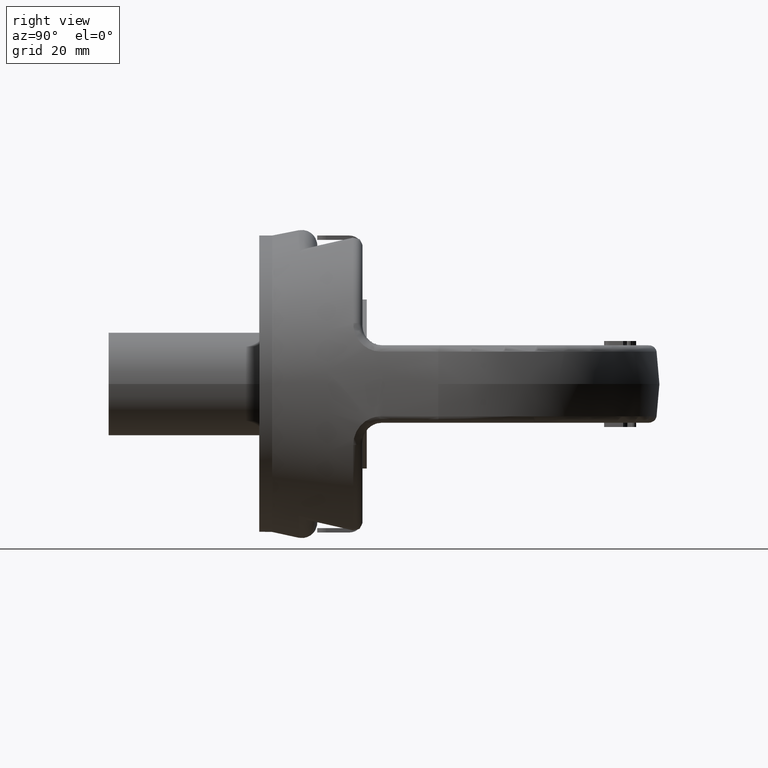
[diagram: clean part render]
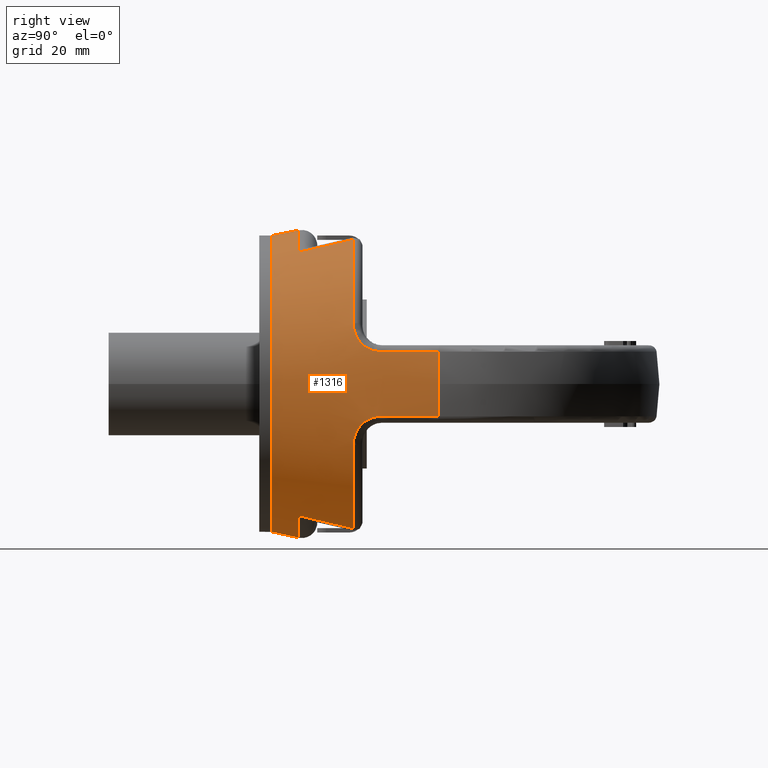
[diagram: same view with one face highlighted and labeled with its STEP entity id]
A machine part, right view. The second image highlights one B-rep face of the part: STEP entity #1316.
In plain terms, the highlighted conical surface has half-angle 11.241 deg.
Its self-contained STEP definition (entity closure, byte-faithful):
#1090=CONICAL_SURFACE('',#5143,33.9037648954629,11.2407771573268);
#1316=ADVANCED_FACE('',(#1767,#1768),#1090,.T.);
#1676=CIRCLE('',#5134,42.1751168609517);
#1677=CIRCLE('',#5135,38.2461693295443);
#1678=CIRCLE('',#5136,35.7318700614479);
#1679=CIRCLE('',#5137,38.2461693295443);
#1680=CIRCLE('',#5138,42.1751168609517);
#1681=CIRCLE('',#5139,38.2461693295443);
#1682=CIRCLE('',#5140,35.7318700614479);
#1683=CIRCLE('',#5141,38.2461693295443);
#1684=CIRCLE('',#5142,34.5000000000001);
#1767=FACE_BOUND('',#1828,.T.);
#1768=FACE_BOUND('',#1829,.T.);
#1828=EDGE_LOOP('',(#2810,#2811,#2812,#2813,#2814,#2815,#2816,#2817,#2818,
#2819,#2820,#2821,#2822,#2823,#2824,#2825,#2826,#2827,#2828,#2829));
#1829=EDGE_LOOP('',(#2830));
#2810=ORIENTED_EDGE('',*,*,#4372,.T.);
#2811=ORIENTED_EDGE('',*,*,#4373,.T.);
#2812=ORIENTED_EDGE('',*,*,#4374,.T.);
#2813=ORIENTED_EDGE('',*,*,#4375,.T.);
#2814=ORIENTED_EDGE('',*,*,#4376,.T.);
#2815=ORIENTED_EDGE('',*,*,#4377,.T.);
#2816=ORIENTED_EDGE('',*,*,#4378,.T.);
#2817=ORIENTED_EDGE('',*,*,#4379,.T.);
#2818=ORIENTED_EDGE('',*,*,#4380,.T.);
#2819=ORIENTED_EDGE('',*,*,#4381,.T.);
#2820=ORIENTED_EDGE('',*,*,#4382,.T.);
#2821=ORIENTED_EDGE('',*,*,#4383,.T.);
#2822=ORIENTED_EDGE('',*,*,#4384,.T.);
#2823=ORIENTED_EDGE('',*,*,#4385,.T.);
#2824=ORIENTED_EDGE('',*,*,#4386,.T.);
#2825=ORIENTED_EDGE('',*,*,#4387,.T.);
#2826=ORIENTED_EDGE('',*,*,#4388,.T.);
#2827=ORIENTED_EDGE('',*,*,#4389,.T.);
#2828=ORIENTED_EDGE('',*,*,#4390,.T.);
#2829=ORIENTED_EDGE('',*,*,#4391,.T.);
#2830=ORIENTED_EDGE('',*,*,#4392,.F.);
#3982=VERTEX_POINT('',#6756);
#3983=VERTEX_POINT('',#6757);
#3984=VERTEX_POINT('',#6765);
#3985=VERTEX_POINT('',#6772);
#3986=VERTEX_POINT('',#6774);
#3987=VERTEX_POINT('',#6782);
#3988=VERTEX_POINT('',#6784);
#3989=VERTEX_POINT('',#6792);
#3990=VERTEX_POINT('',#6794);
#3991=VERTEX_POINT('',#6801);
#3992=VERTEX_POINT('',#6809);
#3993=VERTEX_POINT('',#6811);
#3994=VERTEX_POINT('',#6819);
#3995=VERTEX_POINT('',#6826);
#3996=VERTEX_POINT('',#6828);
#3997=VERTEX_POINT('',#6836);
#3998=VERTEX_POINT('',#6838);
#3999=VERTEX_POINT('',#6846);
#4000=VERTEX_POINT('',#6848);
#4001=VERTEX_POINT('',#6855);
#4002=VERTEX_POINT('',#6864);
#4372=EDGE_CURVE('',#3982,#3983,#1676,.T.);
#4373=EDGE_CURVE('',#3983,#3984,#4887,.T.);
#4374=EDGE_CURVE('',#3984,#3985,#4888,.T.);
#4375=EDGE_CURVE('',#3985,#3986,#1677,.T.);
#4376=EDGE_CURVE('',#3986,#3987,#4889,.T.);
#4377=EDGE_CURVE('',#3987,#3988,#1678,.T.);
#4378=EDGE_CURVE('',#3988,#3989,#4890,.T.);
#4379=EDGE_CURVE('',#3989,#3990,#1679,.T.);
#4380=EDGE_CURVE('',#3990,#3991,#4891,.T.);
#4381=EDGE_CURVE('',#3991,#3992,#4892,.T.);
#4382=EDGE_CURVE('',#3992,#3993,#1680,.T.);
#4383=EDGE_CURVE('',#3993,#3994,#4893,.T.);
#4384=EDGE_CURVE('',#3994,#3995,#4894,.T.);
#4385=EDGE_CURVE('',#3995,#3996,#1681,.T.);
#4386=EDGE_CURVE('',#3996,#3997,#4895,.T.);
#4387=EDGE_CURVE('',#3997,#3998,#1682,.T.);
#4388=EDGE_CURVE('',#3998,#3999,#4896,.T.);
#4389=EDGE_CURVE('',#3999,#4000,#1683,.T.);
#4390=EDGE_CURVE('',#4000,#4001,#4897,.T.);
#4391=EDGE_CURVE('',#4001,#3982,#4898,.T.);
#4392=EDGE_CURVE('',#4002,#4002,#1684,.T.);
#4887=B_SPLINE_CURVE_WITH_KNOTS('',3,(#6758,#6759,#6760,#6761,#6762,#6763,
#6764),.UNSPECIFIED.,.F.,.F.,(4,3,4),(0.,0.261965987056951,1.),
 .UNSPECIFIED.);
#4888=B_SPLINE_CURVE_WITH_KNOTS('',3,(#6766,#6767,#6768,#6769,#6770,#6771),
 .UNSPECIFIED.,.F.,.F.,(4,2,4),(0.,0.5,1.),.UNSPECIFIED.);
#4889=B_SPLINE_CURVE_WITH_KNOTS('',3,(#6775,#6776,#6777,#6778,#6779,#6780,
#6781),.UNSPECIFIED.,.F.,.F.,(4,3,4),(0.,0.267619673112626,1.),
 .UNSPECIFIED.);
#4890=B_SPLINE_CURVE_WITH_KNOTS('',3,(#6785,#6786,#6787,#6788,#6789,#6790,
#6791),.UNSPECIFIED.,.F.,.F.,(4,3,4),(0.,0.732380326887371,1.),
 .UNSPECIFIED.);
#4891=B_SPLINE_CURVE_WITH_KNOTS('',3,(#6795,#6796,#6797,#6798,#6799,#6800),
 .UNSPECIFIED.,.F.,.F.,(4,2,4),(0.,0.5,1.),.UNSPECIFIED.);
#4892=B_SPLINE_CURVE_WITH_KNOTS('',3,(#6802,#6803,#6804,#6805,#6806,#6807,
#6808),.UNSPECIFIED.,.F.,.F.,(4,3,4),(0.,0.261965987367572,1.),
 .UNSPECIFIED.);
#4893=B_SPLINE_CURVE_WITH_KNOTS('',3,(#6812,#6813,#6814,#6815,#6816,#6817,
#6818),.UNSPECIFIED.,.F.,.F.,(4,3,4),(0.,0.261965987056951,1.),
 .UNSPECIFIED.);
#4894=B_SPLINE_CURVE_WITH_KNOTS('',3,(#6820,#6821,#6822,#6823,#6824,#6825),
 .UNSPECIFIED.,.F.,.F.,(4,2,4),(0.,0.5,1.),.UNSPECIFIED.);
#4895=B_SPLINE_CURVE_WITH_KNOTS('',3,(#6829,#6830,#6831,#6832,#6833,#6834,
#6835),.UNSPECIFIED.,.F.,.F.,(4,3,4),(0.,0.267619673112626,1.),
 .UNSPECIFIED.);
#4896=B_SPLINE_CURVE_WITH_KNOTS('',3,(#6839,#6840,#6841,#6842,#6843,#6844,
#6845),.UNSPECIFIED.,.F.,.F.,(4,3,4),(0.,0.732380326887371,1.),
 .UNSPECIFIED.);
#4897=B_SPLINE_CURVE_WITH_KNOTS('',3,(#6849,#6850,#6851,#6852,#6853,#6854),
 .UNSPECIFIED.,.F.,.F.,(4,2,4),(0.,0.5,1.),.UNSPECIFIED.);
#4898=B_SPLINE_CURVE_WITH_KNOTS('',3,(#6856,#6857,#6858,#6859,#6860,#6861,
#6862),.UNSPECIFIED.,.F.,.F.,(4,3,4),(0.,0.261965987367572,1.),
 .UNSPECIFIED.);
#5134=AXIS2_PLACEMENT_3D('',#6755,#5481,#5482);
#5135=AXIS2_PLACEMENT_3D('',#6773,#5483,#5484);
#5136=AXIS2_PLACEMENT_3D('',#6783,#5485,#5486);
#5137=AXIS2_PLACEMENT_3D('',#6793,#5487,#5488);
#5138=AXIS2_PLACEMENT_3D('',#6810,#5489,#5490);
#5139=AXIS2_PLACEMENT_3D('',#6827,#5491,#5492);
#5140=AXIS2_PLACEMENT_3D('',#6837,#5493,#5494);
#5141=AXIS2_PLACEMENT_3D('',#6847,#5495,#5496);
#5142=AXIS2_PLACEMENT_3D('',#6863,#5497,#5498);
#5143=AXIS2_PLACEMENT_3D('',#6865,#5499,#5500);
#5481=DIRECTION('',(-1.36993011669573E-15,-1.,0.));
#5482=DIRECTION('',(1.,-1.31620622212557E-15,0.));
#5483=DIRECTION('',(4.73865087112791E-16,-1.,1.11022359677329E-30));
#5484=DIRECTION('',(-1.,-4.53567901409874E-16,-2.34291072916505E-15));
#5485=DIRECTION('',(-1.33440267382831E-16,-1.,-3.12638634153888E-31));
#5486=DIRECTION('',(-1.,1.45645061928772E-16,-2.34291072916505E-15));
#5487=DIRECTION('',(-4.73865087112791E-16,-1.,-1.11022359677329E-30));
#5488=DIRECTION('',(-1.,4.53567901409874E-16,-2.34291072916505E-15));
#5489=DIRECTION('',(-1.36993011669573E-15,-1.,0.));
#5490=DIRECTION('',(1.,-1.31620622212557E-15,0.));
#5491=DIRECTION('',(-4.73865087112791E-16,-1.,0.));
#5492=DIRECTION('',(1.,-4.53567901409874E-16,0.));
#5493=DIRECTION('',(1.33440267382831E-16,-1.,0.));
#5494=DIRECTION('',(1.,1.45645061928772E-16,0.));
#5495=DIRECTION('',(4.73865087112791E-16,-1.,0.));
#5496=DIRECTION('',(1.,4.53567901409874E-16,0.));
#5497=DIRECTION('',(0.,-1.,0.));
#5498=DIRECTION('',(0.,0.,1.));
#5499=DIRECTION('',(1.36993011669573E-15,1.,0.));
#5500=DIRECTION('',(-1.,7.75466031642051E-16,0.));
#6755=CARTESIAN_POINT('',(-7.03898794955252E-14,41.6179049298475,0.));
#6756=CARTESIAN_POINT('',(-41.5002629334913,41.6179049298476,7.51456310679614));
#6757=CARTESIAN_POINT('',(-41.5002629334912,41.6179049298475,-7.51456310679622));
#6758=CARTESIAN_POINT('',(-41.5002629334912,41.6179049298475,-7.51456310679622));
#6759=CARTESIAN_POINT('',(-41.262371793964,40.4417227580087,-7.51638278088225));
#6760=CARTESIAN_POINT('',(-41.024407429153,39.2655554421835,-7.51823400134156));
#6761=CARTESIAN_POINT('',(-40.7863656152853,38.089403857365,-7.5201184668886));
#6762=CARTESIAN_POINT('',(-40.1157329366906,34.7758444664987,-7.525427551696));
#6763=CARTESIAN_POINT('',(-39.4444872519472,31.4624094684591,-7.53099986567119));
#6764=CARTESIAN_POINT('',(-38.7725191268712,28.1491216017145,-7.53687895949735));
#6765=CARTESIAN_POINT('',(-38.7725191268712,28.1491216017145,-7.53687895949735));
#6766=CARTESIAN_POINT('',(-38.7725191268712,28.1491216017145,-7.53687895949735));
#6767=CARTESIAN_POINT('',(-38.4155167898867,26.3888424048459,-7.54000239669171));
#6768=CARTESIAN_POINT('',(-37.9375858818164,24.73080778331,-8.33524847165429));
#6769=CARTESIAN_POINT('',(-36.826425115145,22.451579933414,-10.8437830853427));
#6770=CARTESIAN_POINT('',(-36.1939914476563,21.8491216017145,-12.4889596849298));
#6771=CARTESIAN_POINT('',(-35.5310116414863,21.8491216017145,-14.1533275280666));
#6772=CARTESIAN_POINT('',(-35.5310116414863,21.8491216017145,-14.1533275280666));
#6773=CARTESIAN_POINT('',(9.74717311471669E-14,21.8491216017146,2.28367564694988E-28));
#6774=CARTESIAN_POINT('',(-18.288411841992,21.8491216017145,-33.5902286488475));
#6775=CARTESIAN_POINT('',(-18.288411841992,21.8491216017145,-33.5902286488475));
#6776=CARTESIAN_POINT('',(-18.2993288069207,20.7197229204895,-33.3287097337531));
#6777=CARTESIAN_POINT('',(-18.3104554774157,19.5905288479823,-33.0663140445697));
#6778=CARTESIAN_POINT('',(-18.3218042261469,18.4615583795549,-32.8029709384343));
#6779=CARTESIAN_POINT('',(-18.3528616588794,15.3719733327251,-32.0822958227823));
#6780=CARTESIAN_POINT('',(-18.3855780057218,12.2840377201631,-31.3545617122288));
#6781=CARTESIAN_POINT('',(-18.4202456943873,9.1982432034291,-30.6179863257955));
#6782=CARTESIAN_POINT('',(-18.4202456943873,9.1982432034291,-30.6179863257955));
#6783=CARTESIAN_POINT('',(1.14802550467634E-13,9.1982432034291,2.68972127226131E-28));
#6784=CARTESIAN_POINT('',(18.4202456943874,9.1982432034291,-30.6179863257956));
#6785=CARTESIAN_POINT('',(18.4202456943874,9.1982432034291,-30.6179863257956));
#6786=CARTESIAN_POINT('',(18.3855780057219,12.2840377201631,-31.3545617122288));
#6787=CARTESIAN_POINT('',(18.3528616588795,15.3719733327251,-32.0822958227824));
#6788=CARTESIAN_POINT('',(18.321804226147,18.4615583795548,-32.8029709384343));
#6789=CARTESIAN_POINT('',(18.3104554774158,19.5905288479823,-33.0663140445697));
#6790=CARTESIAN_POINT('',(18.2993288069208,20.7197229204895,-33.3287097337531));
#6791=CARTESIAN_POINT('',(18.2884118419922,21.8491216017145,-33.5902286488475));
#6792=CARTESIAN_POINT('',(18.2884118419922,21.8491216017145,-33.5902286488475));
#6793=CARTESIAN_POINT('',(9.74717311471669E-14,21.8491216017146,2.28367564694988E-28));
#6794=CARTESIAN_POINT('',(35.5310116414866,21.8491216017145,-14.1533275280664));
#6795=CARTESIAN_POINT('',(35.5310116414866,21.8491216017145,-14.1533275280664));
#6796=CARTESIAN_POINT('',(36.1935776588447,21.8491216017145,-12.4899984749288));
#6797=CARTESIAN_POINT('',(36.8321705243426,22.4621816007076,-10.8303715744333));
#6798=CARTESIAN_POINT('',(37.9348125300438,24.7263056337703,-8.34195151364679));
#6799=CARTESIAN_POINT('',(38.4157924795365,26.3902017538044,-7.53999998466445));
#6800=CARTESIAN_POINT('',(38.7725191268714,28.1491216017145,-7.53687895949717));
#6801=CARTESIAN_POINT('',(38.7725191268714,28.1491216017145,-7.53687895949717));
#6802=CARTESIAN_POINT('',(38.7725191268714,28.1491216017145,-7.53687895949717));
#6803=CARTESIAN_POINT('',(39.0110349591953,29.3251768099523,-7.5347921686139));
#6804=CARTESIAN_POINT('',(39.2494595454838,30.5012505963745,-7.5327441116826));
#6805=CARTESIAN_POINT('',(39.4877981351242,31.6773418686576,-7.5307327101645));
#6806=CARTESIAN_POINT('',(40.1592669165261,34.9907313395309,-7.52506600999522));
#6807=CARTESIAN_POINT('',(40.8300547478608,38.304259365217,-7.51968965530919));
#6808=CARTESIAN_POINT('',(41.5002629334914,41.6179049298476,-7.51456310679605));
#6809=CARTESIAN_POINT('',(41.5002629334914,41.6179049298476,-7.51456310679605));
#6810=CARTESIAN_POINT('',(-7.03898794955252E-14,41.6179049298475,0.));
#6811=CARTESIAN_POINT('',(41.5002629334912,41.6179049298475,7.51456310679612));
#6812=CARTESIAN_POINT('',(41.5002629334912,41.6179049298475,7.51456310679612));
#6813=CARTESIAN_POINT('',(41.2623717939641,40.4417227580087,7.51638278088215));
#6814=CARTESIAN_POINT('',(41.024407429153,39.2655554421835,7.51823400134146));
#6815=CARTESIAN_POINT('',(40.7863656152853,38.089403857365,7.5201184668885));
#6816=CARTESIAN_POINT('',(40.1157329366907,34.7758444664987,7.52542755169591));
#6817=CARTESIAN_POINT('',(39.4444872519472,31.4624094684591,7.5309998656711));
#6818=CARTESIAN_POINT('',(38.7725191268712,28.1491216017145,7.53687895949726));
#6819=CARTESIAN_POINT('',(38.7725191268712,28.1491216017145,7.53687895949726));
#6820=CARTESIAN_POINT('',(38.7725191268712,28.1491216017145,7.53687895949726));
#6821=CARTESIAN_POINT('',(38.4155167898867,26.3888424048459,7.54000239669162));
#6822=CARTESIAN_POINT('',(37.9375858818164,24.73080778331,8.3352484716542));
#6823=CARTESIAN_POINT('',(36.826425115145,22.451579933414,10.8437830853426));
#6824=CARTESIAN_POINT('',(36.1939914476564,21.8491216017145,12.4889596849297));
#6825=CARTESIAN_POINT('',(35.5310116414864,21.8491216017145,14.1533275280665));
#6826=CARTESIAN_POINT('',(35.5310116414864,21.8491216017145,14.1533275280665));
#6827=CARTESIAN_POINT('',(-9.74717311471669E-14,21.8491216017146,0.));
#6828=CARTESIAN_POINT('',(18.2884118419921,21.8491216017145,33.5902286488474));
#6829=CARTESIAN_POINT('',(18.2884118419921,21.8491216017145,33.5902286488474));
#6830=CARTESIAN_POINT('',(18.2993288069208,20.7197229204895,33.3287097337531));
#6831=CARTESIAN_POINT('',(18.3104554774158,19.5905288479823,33.0663140445697));
#6832=CARTESIAN_POINT('',(18.321804226147,18.4615583795549,32.8029709384343));
#6833=CARTESIAN_POINT('',(18.3528616588795,15.3719733327251,32.0822958227823));
#6834=CARTESIAN_POINT('',(18.3855780057219,12.2840377201631,31.3545617122287));
#6835=CARTESIAN_POINT('',(18.4202456943874,9.1982432034291,30.6179863257955));
#6836=CARTESIAN_POINT('',(18.4202456943874,9.1982432034291,30.6179863257955));
#6837=CARTESIAN_POINT('',(-1.14802550467634E-13,9.1982432034291,0.));
#6838=CARTESIAN_POINT('',(-18.4202456943873,9.1982432034291,30.6179863257956));
#6839=CARTESIAN_POINT('',(-18.4202456943873,9.1982432034291,30.6179863257956));
#6840=CARTESIAN_POINT('',(-18.3855780057219,12.2840377201631,31.3545617122289));
#6841=CARTESIAN_POINT('',(-18.3528616588794,15.3719733327251,32.0822958227824));
#6842=CARTESIAN_POINT('',(-18.3218042261469,18.4615583795548,32.8029709384344));
#6843=CARTESIAN_POINT('',(-18.3104554774157,19.5905288479823,33.0663140445698));
#6844=CARTESIAN_POINT('',(-18.2993288069208,20.7197229204895,33.3287097337532));
#6845=CARTESIAN_POINT('',(-18.2884118419921,21.8491216017145,33.5902286488475));
#6846=CARTESIAN_POINT('',(-18.2884118419921,21.8491216017145,33.5902286488475));
#6847=CARTESIAN_POINT('',(-9.74717311471669E-14,21.8491216017146,0.));
#6848=CARTESIAN_POINT('',(-35.5310116414865,21.8491216017145,14.1533275280665));
#6849=CARTESIAN_POINT('',(-35.5310116414865,21.8491216017145,14.1533275280665));
#6850=CARTESIAN_POINT('',(-36.1935776588447,21.8491216017145,12.4899984749289));
#6851=CARTESIAN_POINT('',(-36.8321705243426,22.4621816007076,10.8303715744334));
#6852=CARTESIAN_POINT('',(-37.9348125300437,24.7263056337703,8.34195151364688));
#6853=CARTESIAN_POINT('',(-38.4157924795365,26.3902017538044,7.53999998466454));
#6854=CARTESIAN_POINT('',(-38.7725191268714,28.1491216017145,7.53687895949726));
#6855=CARTESIAN_POINT('',(-38.7725191268714,28.1491216017145,7.53687895949726));
#6856=CARTESIAN_POINT('',(-38.7725191268714,28.1491216017145,7.53687895949726));
#6857=CARTESIAN_POINT('',(-39.0110349591953,29.3251768099523,7.53479216861399));
#6858=CARTESIAN_POINT('',(-39.2494595454838,30.5012505963745,7.53274411168269));
#6859=CARTESIAN_POINT('',(-39.4877981351242,31.6773418686576,7.5307327101646));
#6860=CARTESIAN_POINT('',(-40.159266916526,34.9907313395309,7.52506600999531));
#6861=CARTESIAN_POINT('',(-40.8300547478608,38.304259365217,7.51968965530929));
#6862=CARTESIAN_POINT('',(-41.5002629334913,41.6179049298476,7.51456310679614));
#6863=CARTESIAN_POINT('',(-1.27403500852703E-13,3.,1.35029952529594E-14));
#6864=CARTESIAN_POINT('',(-1.27403500852703E-13,3.,34.5000000000001));
#6865=CARTESIAN_POINT('',(-1.27403500852703E-13,4.16333634234434E-14,0.));